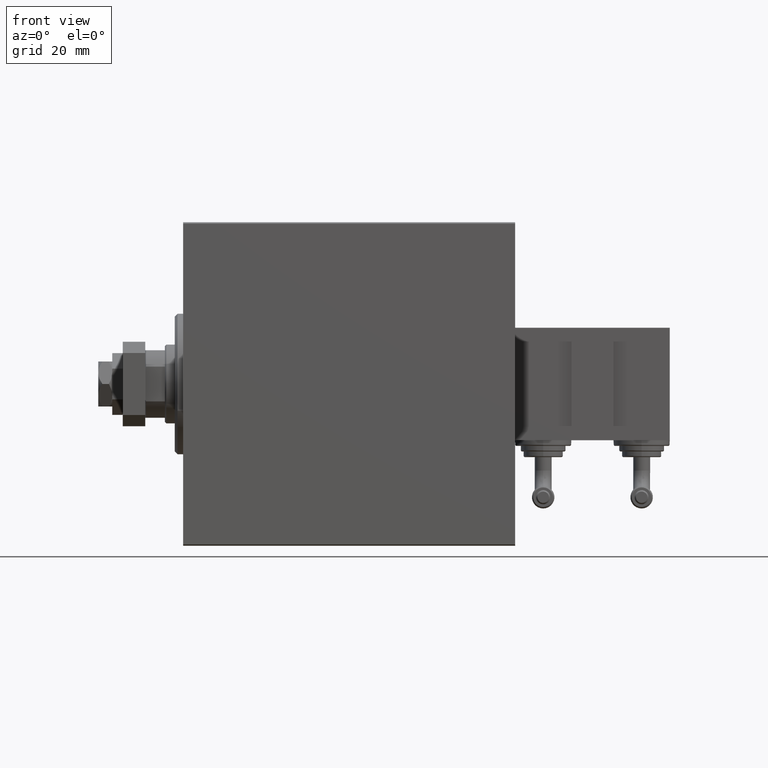
[diagram: clean part render]
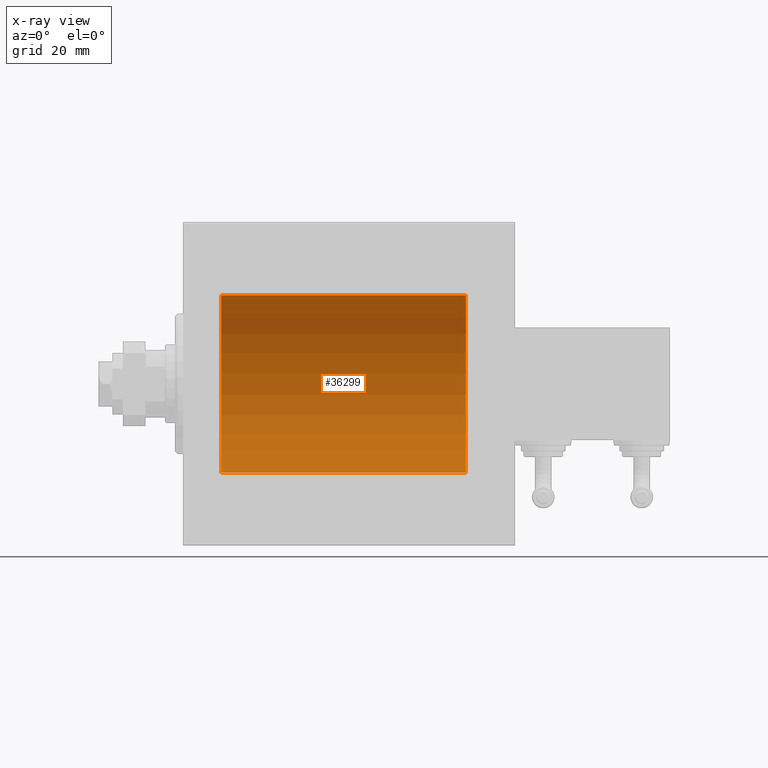
[diagram: x-ray — body ghosted, one internal face saturated and labeled with its STEP entity id]
A machine part, front view, then the same camera in x-ray: the body is ghosted and one INTERNAL B-rep face — a face not visible from any outside direction — is saturated and labeled: STEP entity #36299.
In plain terms, the highlighted cylindrical surface (partial cylindrical patch) has radius 31.5 mm, axis along (-1, -0, -0).
Its self-contained STEP definition (entity closure, byte-faithful):
#1328 = DIRECTION ( 'NONE',  ( 0.000000000000000000, 0.000000000000000000, 1.000000000000000000 ) ) ;
#1690 = EDGE_LOOP ( 'NONE', ( #42324, #7738, #19951, #3055 ) ) ;
#2069 = CARTESIAN_POINT ( 'NONE',  ( 13.49999999999999822, 0.000000000000000000, 0.000000000000000000 ) ) ;
#3055 = ORIENTED_EDGE ( 'NONE', *, *, #19513, .T. ) ;
#3078 = DIRECTION ( 'NONE',  ( -1.000000000000000000, 0.000000000000000000, 0.000000000000000000 ) ) ;
#4021 = AXIS2_PLACEMENT_3D ( 'NONE', #46666, #38432, #18807 ) ;
#6435 = CARTESIAN_POINT ( 'NONE',  ( 100.5000000000000000, 3.857637417314162689E-15, -31.50000000000000000 ) ) ;
#6442 = VECTOR ( 'NONE', #13669, 1000.000000000000000 ) ;
#6884 = CARTESIAN_POINT ( 'NONE',  ( 13.49999999999999822, 0.000000000000000000, 31.50000000000000000 ) ) ;
#7738 = ORIENTED_EDGE ( 'NONE', *, *, #29131, .F. ) ;
#11239 = VERTEX_POINT ( 'NONE', #41197 ) ;
#12167 = EDGE_CURVE ( 'NONE', #47888, #11239, #49015, .T. ) ;
#13669 = DIRECTION ( 'NONE',  ( -1.000000000000000000, -0.000000000000000000, -0.000000000000000000 ) ) ;
#15234 = CIRCLE ( 'NONE', #35849, 31.50000000000000000 ) ;
#16809 = EDGE_CURVE ( 'NONE', #26612, #29389, #48866, .T. ) ;
#17787 = DIRECTION ( 'NONE',  ( 0.000000000000000000, 0.000000000000000000, 1.000000000000000000 ) ) ;
#18807 = DIRECTION ( 'NONE',  ( 0.000000000000000000, 0.000000000000000000, 1.000000000000000000 ) ) ;
#19513 = EDGE_CURVE ( 'NONE', #29389, #11239, #15234, .T. ) ;
#19951 = ORIENTED_EDGE ( 'NONE', *, *, #16809, .T. ) ;
#20147 = DIRECTION ( 'NONE',  ( -1.000000000000000000, -0.000000000000000000, -0.000000000000000000 ) ) ;
#20919 = CARTESIAN_POINT ( 'NONE',  ( 100.5000000000000000, 0.000000000000000000, 0.000000000000000000 ) ) ;
#26612 = VERTEX_POINT ( 'NONE', #26668 ) ;
#26668 = CARTESIAN_POINT ( 'NONE',  ( 100.5000000000000000, 0.000000000000000000, 31.50000000000000000 ) ) ;
#29131 = EDGE_CURVE ( 'NONE', #26612, #47888, #37809, .T. ) ;
#29264 = DIRECTION ( 'NONE',  ( -1.000000000000000000, -0.000000000000000000, -0.000000000000000000 ) ) ;
#29389 = VERTEX_POINT ( 'NONE', #6884 ) ;
#35849 = AXIS2_PLACEMENT_3D ( 'NONE', #2069, #3078, #17787 ) ;
#36299 = ADVANCED_FACE ( 'NONE', ( #47760 ), #40537, .F. ) ;
#37809 = CIRCLE ( 'NONE', #4021, 31.50000000000000000 ) ;
#38432 = DIRECTION ( 'NONE',  ( -1.000000000000000000, 0.000000000000000000, 0.000000000000000000 ) ) ;
#40537 = CYLINDRICAL_SURFACE ( 'NONE', #45336, 31.50000000000000000 ) ;
#41197 = CARTESIAN_POINT ( 'NONE',  ( 13.49999999999999822, 3.857637417314162689E-15, -31.50000000000000000 ) ) ;
#42324 = ORIENTED_EDGE ( 'NONE', *, *, #12167, .F. ) ;
#44481 = CARTESIAN_POINT ( 'NONE',  ( 100.5000000000000000, 0.000000000000000000, 31.50000000000000000 ) ) ;
#45336 = AXIS2_PLACEMENT_3D ( 'NONE', #20919, #20147, #1328 ) ;
#46666 = CARTESIAN_POINT ( 'NONE',  ( 100.5000000000000000, 0.000000000000000000, 0.000000000000000000 ) ) ;
#47760 = FACE_OUTER_BOUND ( 'NONE', #1690, .T. ) ;
#47888 = VERTEX_POINT ( 'NONE', #49536 ) ;
#48866 = LINE ( 'NONE', #44481, #48921 ) ;
#48921 = VECTOR ( 'NONE', #29264, 1000.000000000000000 ) ;
#49015 = LINE ( 'NONE', #6435, #6442 ) ;
#49536 = CARTESIAN_POINT ( 'NONE',  ( 100.5000000000000000, 3.857637417314162689E-15, -31.50000000000000000 ) ) ;